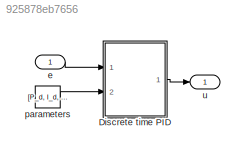
MODEL slx_925878eb7656
KIND model
CONFIG AbsTol = auto
CONFIG FixedStep = auto
CONFIG MaxStep = auto
CONFIG MinStep = auto
CONFIG RelTol = 1e-3
CONFIG SampleTimeConstraint = Unconstrained
CONFIG Solver = VariableStepAuto
CONFIG SolverMode = Auto
CONFIG SolverName = VariableStepAuto
CONFIG StartTime = 0.0
CONFIG StopTime = 10.0
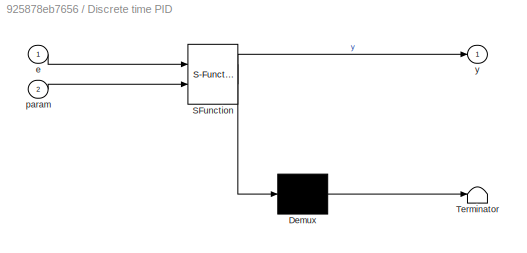
BLOCK [SubSystem] Discrete time PID
  ErrorFcn = Stateflow.Translate.translate
  PermitHierarchicalResolution = ExplicitOnly
  Ports = [2, 1]
  RequestExecContextInheritance = off
  SFBlockType = MATLAB Function
  TreatAsAtomicUnit = on
  Variant = off
BLOCK [Demux] Discrete time PID/ Demux 
  Outputs = 1
  Ports = [1, 1]
BLOCK [S-Function] Discrete time PID/ SFunction 
  EnableBusSupport = on
  FunctionName = sf_sfun
  PortCounts = [2 2]
  Ports = [2, 2]
  SFunctionDeploymentMode = off
  Tag = Stateflow S-Function PID_d 2
BLOCK [Terminator] Discrete time PID/ Terminator 
BLOCK [Inport] Discrete time PID/e
  IconDisplay = Port number
BLOCK [Inport] Discrete time PID/param
  IconDisplay = Port number
  Port = 2
BLOCK [Outport] Discrete time PID/y
  IconDisplay = Port number
BLOCK [Inport] e
  IconDisplay = Port number
BLOCK [Constant] parameters
  Value = [P_d, I_d, D_d, timestep]
BLOCK [Outport] u
  IconDisplay = Port number
LINE Discrete time PID:1 -> u:1
LINE e:1 -> Discrete time PID:1
LINE parameters:1 -> Discrete time PID:2
CHART Discrete time PID states=1 transitions=1
  STATE_LABEL 'eML_blk_kernel()'
  STATE_LABEL 'SCRIPT:\nfunction y = PID_d(e, param)\n%#codegen\nKp = param(1); Ki = param(2); Kd = param(3); h = param(4);\npersistent I\npersistent em1\nif isempty(I) || isempty(em1)\n    I = 0;\n    em1 = 0;\nend\nP = Kp * e;\nI = I + Ki * h * e;\nD = Kd * (e - em1)/h;\nem1 = e;\ny = P + I + D;'
